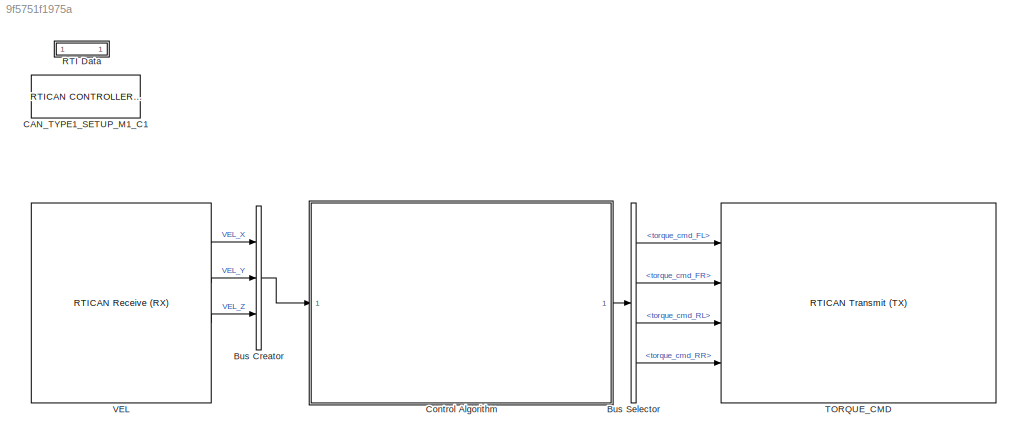
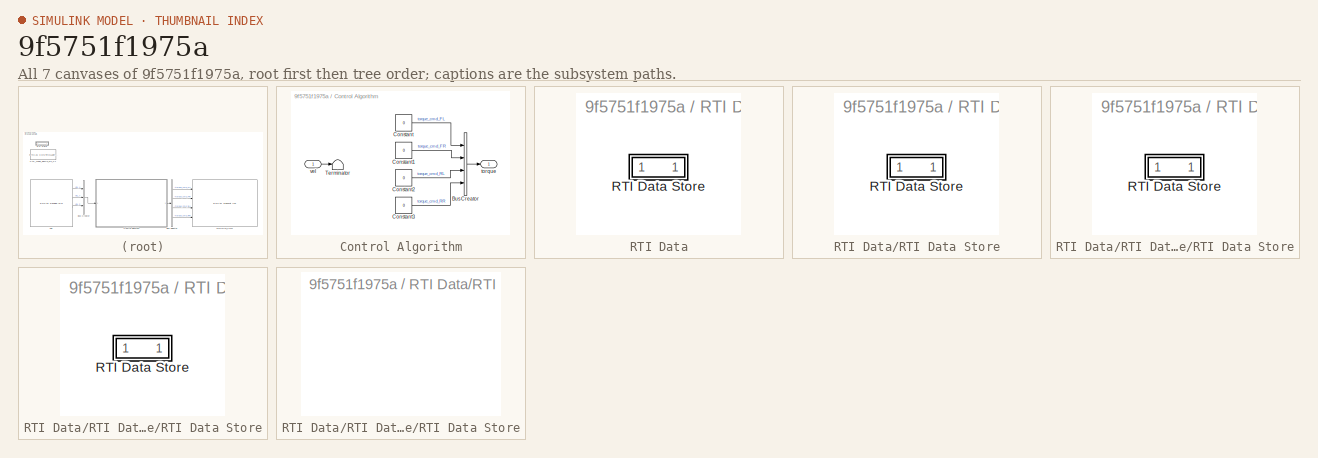
[diagram: thumbnail index - all 7 canvases of the model, root first then tree order]
MODEL slx_9f5751f1975a
KIND model
CONFIG AbsTol = auto
CONFIG EnableMultiTasking = on
CONFIG FixedStep = 0.01
CONFIG MaxStep = auto
CONFIG MinStep = auto
CONFIG PostLoadFcn = , if any(exist('dsrtsu_mdlpostloadfcn', 'file') == [2, 3, 6]), try dsrtsu_mdlpostloadfcn('Execute', bdroot); catch fprintf('Error in PostLoadFcn (dsrtsu_mdlpostloadfcn) for model "%s":\n %s\n', bdroot, lasterr); end, end, \n
CONFIG RelTol = 1e-3
CONFIG SampleTimeConstraint = Unconstrained
CONFIG Solver = FixedStepDiscrete
CONFIG SolverName = FixedStepDiscrete
CONFIG StartTime = 0.0
CONFIG StopTime = 10.0
BLOCK [BusCreator] Bus Creator
  DisplayOption = bar
  InheritFromInputs = on
  Inputs = 3
  Ports = [3, 1]
BLOCK [BusSelector] Bus Selector
  OutputAsBus = off
  OutputSignals = torque_cmd_FL,torque_cmd_FR,torque_cmd_RL,torque_cmd_RR
  Ports = [1, 4]
BLOCK [Reference] CAN_TYPE1_SETUP_M1_C1  REF=rtican/RTICAN
CONTROLLER SETUP 
  AttributesFormatString = Group Id: RTICAN1\n
  Ports = []
  SourceBlock = rtican/RTICAN\nCONTROLLER SETUP
  SourceType = RTI
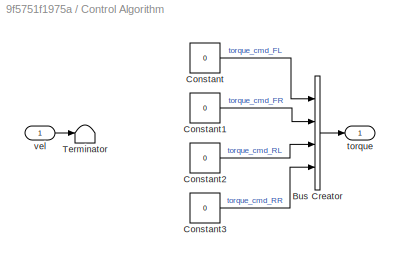
BLOCK [SubSystem] Control Algorithm
  Ports = [1, 1]
  RequestExecContextInheritance = off
  Variant = off
BLOCK [BusCreator] Control Algorithm/Bus Creator
  DisplayOption = bar
  InheritFromInputs = on
  Inputs = 4
  Ports = [4, 1]
BLOCK [Constant] Control Algorithm/Constant
  Value = 0
BLOCK [Constant] Control Algorithm/Constant1
  Value = 0
BLOCK [Constant] Control Algorithm/Constant2
  Value = 0
BLOCK [Constant] Control Algorithm/Constant3
  Value = 0
BLOCK [Terminator] Control Algorithm/Terminator
BLOCK [Outport] Control Algorithm/torque
  IconDisplay = Port number
BLOCK [Inport] Control Algorithm/vel
  IconDisplay = Port number
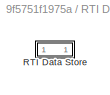
BLOCK [SubSystem] RTI Data
  CopyFcn = if exist('rtidc'), try,  rtidc('DataHostBlockClbCopy', gcbh); catch, disp(['Warning: ''CopyFcn'' for RTI Data block failed: ' lasterr]); end, end,
  DeleteFcn = if exist('rtidc'), try,  rtidc('DataHostBlockClbDelete', gcbh); catch, disp(['Warning: ''DeleteFcn'' for RTI Data block failed: ' lasterr]); end, end,
  LoadFcn = if exist('rtidc'), try,  rtidc('DataHostBlockClbLoad', gcbh); catch, disp(['Warning: ''LoadFcn'' for RTI Data block failed: ' lasterr]); end, end,
  ModelCloseFcn = if exist('rtidc'), try,  rtidc('DataHostBlockClbModelClose', gcbh); catch, disp(['Warning: ''ModelCloseFcn'' for RTI Data block failed: ' lasterr]); end, end,
  NameChangeFcn = if exist('rtidc'), try,  rtidc('DataHostBlockClbNameChange', gcbh); catch, disp(['Warning: ''NameChangeFcn'' for RTI Data block failed: ' lasterr]); end, end,
  Ports = []
  PostSaveFcn = if exist('rtidc'), try,  rtidc('DataHostBlockClbPostSave', gcbh); catch, disp(['Warning: ''PostSaveFcn'' for RTI Data block failed: ' lasterr]); end, end,
  PreSaveFcn = if exist('rtidc'), try,  rtidc('DataHostBlockClbPreSave', gcbh); catch, disp(['Warning: ''PreSaveFcn'' for RTI Data block failed: ' lasterr]); end, end,
  RequestExecContextInheritance = off
  Tag = struct('RTIDataServer',struct('RTIDataServerVs','2','RTIModelDescription','struct(''main'',''can_example'',''sub'','''',''isMp'',0)'))
  Variant = off
BLOCK [SubSystem] RTI Data/RTI Data Store
  Ports = []
  RequestExecContextInheritance = off
  Tag = struct('private',struct('version',struct('dsVer',uint32(2),'dsVerCreation',uint32(2),'RTI',struct('ver','7.1','type','RTI1401')),'access',struct('type','Model','isPerm',1,'created',['21-May-2018 14:45:07'],'modified',['21-May-2018 14:48:53'],'location','')),'public',struct('main',struct('data',[]),'sub',struct('name',{{'can_example'}},'data',{{struct('TH',struct('thTaskInfo',struct('taskType',{'TI...<+1183ch>
  Variant = off
BLOCK [SubSystem] RTI Data/RTI Data Store/RTI Data Store
  Ports = []
  RequestExecContextInheritance = off
  Variant = off
BLOCK [SubSystem] RTI Data/RTI Data Store/RTI Data Store/RTI Data Store
  Ports = []
  RequestExecContextInheritance = off
  Variant = off
BLOCK [SubSystem] RTI Data/RTI Data Store/RTI Data Store/RTI Data Store/RTI Data Store
  Ports = []
  RequestExecContextInheritance = off
  Variant = off
BLOCK [Reference] TORQUE_CMD  REF=rtican/RTICAN
Transmit (TX) 
  AttributesFormatString = Group Id: RTICAN1\n
  Ports = [4]
  SourceBlock = rtican/RTICAN\nTransmit (TX)
  SourceType = RTI
BLOCK [Reference] VEL  REF=rtican/RTICAN
Receive (RX) 
  AttributesFormatString = Group Id: RTICAN1\n
  Ports = [0, 4]
  SourceBlock = rtican/RTICAN\nReceive (RX)
  SourceType = RTI
LINE Bus Creator:1 -> Control Algorithm:1
LINE Bus Selector:1 -> TORQUE_CMD:1
LINE Bus Selector:2 -> TORQUE_CMD:2
LINE Bus Selector:3 -> TORQUE_CMD:3
LINE Bus Selector:4 -> TORQUE_CMD:4
LINE Control Algorithm/Bus Creator:1 -> Control Algorithm/torque:1
LINE Control Algorithm/Constant1:1 -> Control Algorithm/Bus Creator:2
LINE Control Algorithm/Constant2:1 -> Control Algorithm/Bus Creator:3
LINE Control Algorithm/Constant3:1 -> Control Algorithm/Bus Creator:4
LINE Control Algorithm/Constant:1 -> Control Algorithm/Bus Creator:1
LINE Control Algorithm/vel:1 -> Control Algorithm/Terminator:1
LINE Control Algorithm:1 -> Bus Selector:1
LINE VEL:1 -> Bus Creator:1
LINE VEL:2 -> Bus Creator:2
LINE VEL:3 -> Bus Creator:3
